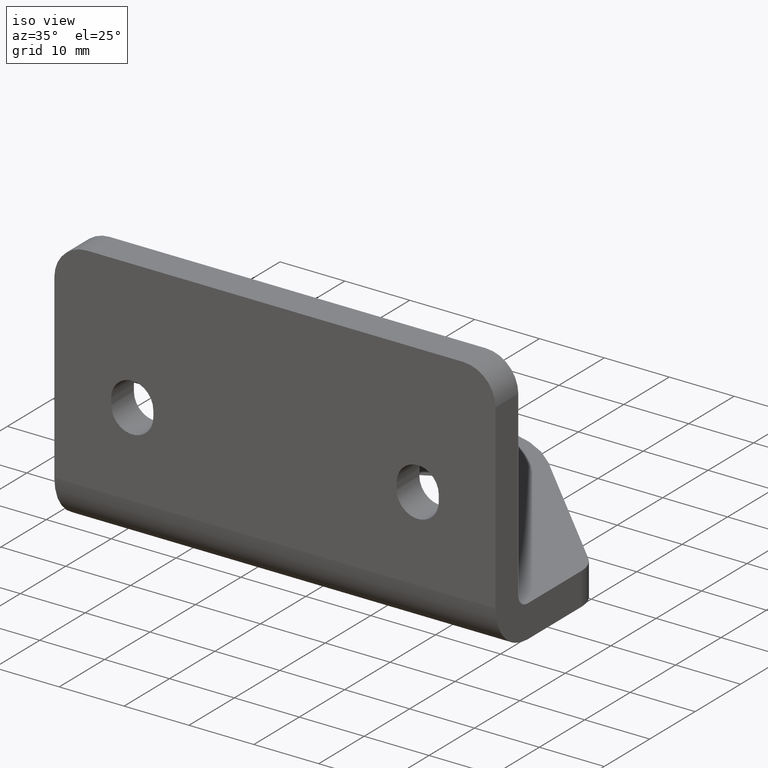
[diagram: clean part render]
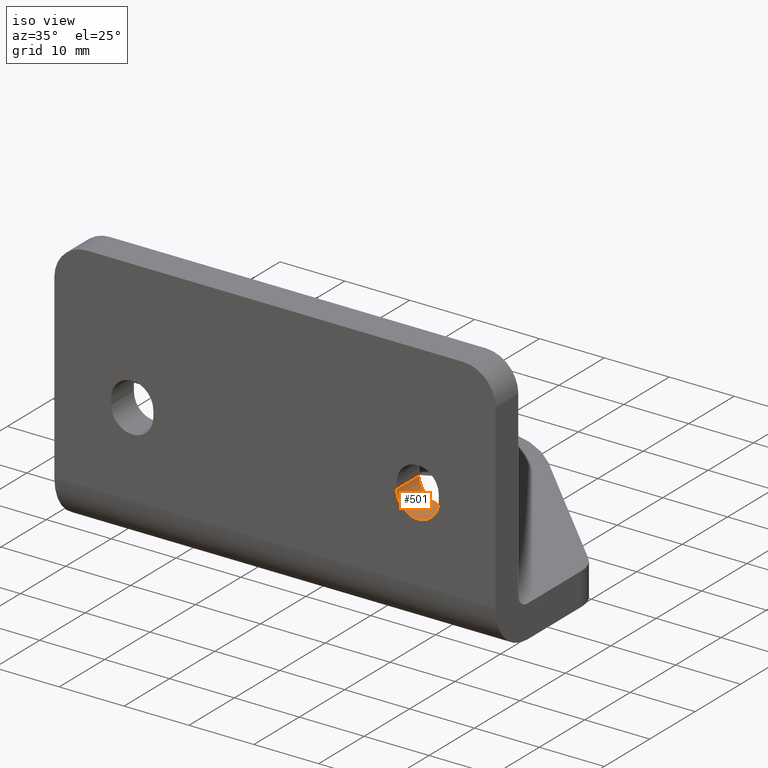
[diagram: same view with one face highlighted and labeled with its STEP entity id]
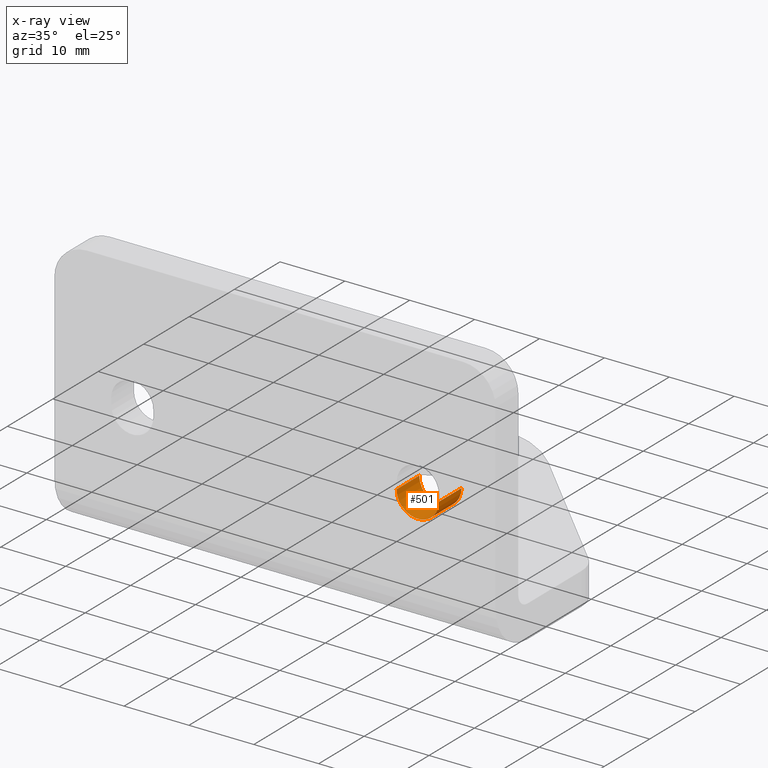
[diagram: x-ray of the same camera — body ghosted, the highlighted face saturated]
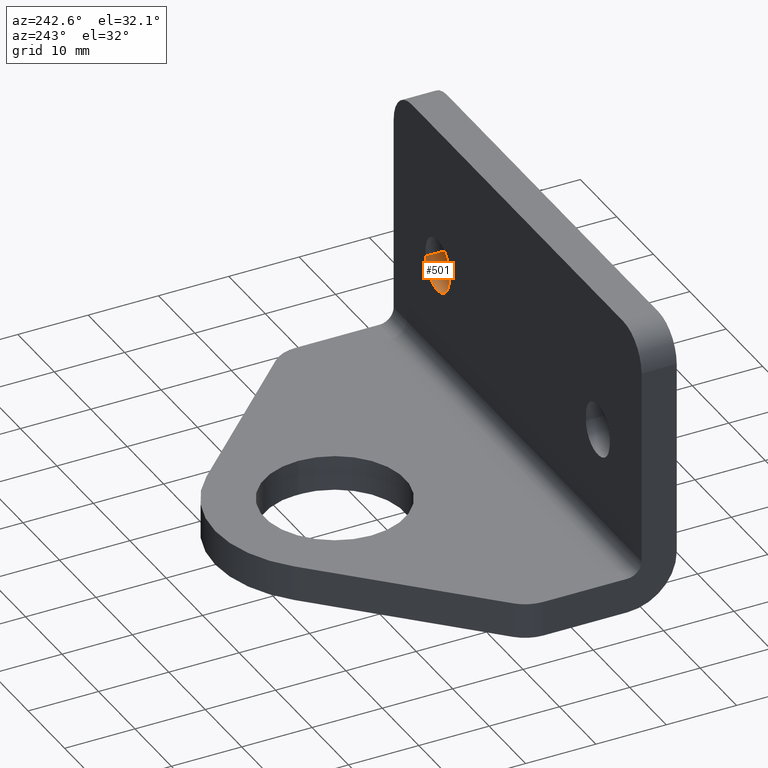
[diagram: same view with one face highlighted and labeled with its STEP entity id]
A machine part, iso view. The second image highlights one B-rep face of the part: STEP entity #501.
The next image is the same camera in x-ray: the body ghosted, the highlighted face saturated — about 0% of this face is hidden behind the body in this view.
A second angle (auxiliary view) of the same face is appended — the face is thin or edge-on in the first view.
In plain terms, the highlighted cylindrical surface (edge-blend (fillet) strip) has radius 3.25 mm, axis along (0, -1, -0).
Its self-contained STEP definition (entity closure, byte-faithful):
#38=FACE_OUTER_BOUND('',#67,.T.);
#67=EDGE_LOOP('',(#343,#344,#345,#346));
#102=LINE('',#769,#151);
#103=LINE('',#772,#152);
#151=VECTOR('',#612,10.);
#152=VECTOR('',#615,10.);
#200=CIRCLE('',#554,3.25);
#201=CIRCLE('',#555,3.25);
#224=VERTEX_POINT('',#765);
#225=VERTEX_POINT('',#766);
#226=VERTEX_POINT('',#768);
#227=VERTEX_POINT('',#770);
#270=EDGE_CURVE('',#224,#225,#200,.T.);
#271=EDGE_CURVE('',#224,#226,#102,.T.);
#272=EDGE_CURVE('',#227,#226,#201,.T.);
#273=EDGE_CURVE('',#225,#227,#103,.T.);
#343=ORIENTED_EDGE('',*,*,#270,.F.);
#344=ORIENTED_EDGE('',*,*,#271,.T.);
#345=ORIENTED_EDGE('',*,*,#272,.F.);
#346=ORIENTED_EDGE('',*,*,#273,.F.);
#489=CYLINDRICAL_SURFACE('',#553,3.25);
#501=ADVANCED_FACE('',(#38),#489,.F.);
#553=AXIS2_PLACEMENT_3D('',#764,#608,#609);
#554=AXIS2_PLACEMENT_3D('',#767,#610,#611);
#555=AXIS2_PLACEMENT_3D('',#771,#613,#614);
#608=DIRECTION('center_axis',(0.,-1.,-5.77315972805081E-15));
#609=DIRECTION('ref_axis',(-1.,-5.12759588393657E-29,8.88178419700125E-15));
#610=DIRECTION('center_axis',(-4.88408820356846E-18,-1.,-5.58626046576697E-15));
#611=DIRECTION('ref_axis',(-1.,4.88408820351885E-18,8.88178419700125E-15));
#612=DIRECTION('',(0.,-1.,-5.77315972805081E-15));
#613=DIRECTION('center_axis',(-4.88408820356866E-18,1.,5.58626046576697E-15));
#614=DIRECTION('ref_axis',(-1.,-4.88408820361828E-18,8.88178419700125E-15));
#615=DIRECTION('',(0.,-1.,-5.77315972805081E-15));
#764=CARTESIAN_POINT('Origin',(80.0042552273484,231.069817976792,19.5));
#765=CARTESIAN_POINT('',(76.7542552273484,231.069817976792,19.5000000000001));
#766=CARTESIAN_POINT('',(83.2542552273484,231.069817976792,19.5));
#767=CARTESIAN_POINT('Origin',(80.0042552273484,231.069817976792,19.5));
#768=CARTESIAN_POINT('',(76.7542552273484,226.069817976792,19.5));
#769=CARTESIAN_POINT('',(76.7542552273484,231.069817976792,19.5000000000001));
#770=CARTESIAN_POINT('',(83.2542552273484,226.069817976792,19.5));
#771=CARTESIAN_POINT('Origin',(80.0042552273484,226.069817976792,19.5));
#772=CARTESIAN_POINT('',(83.2542552273484,231.069817976792,19.5));